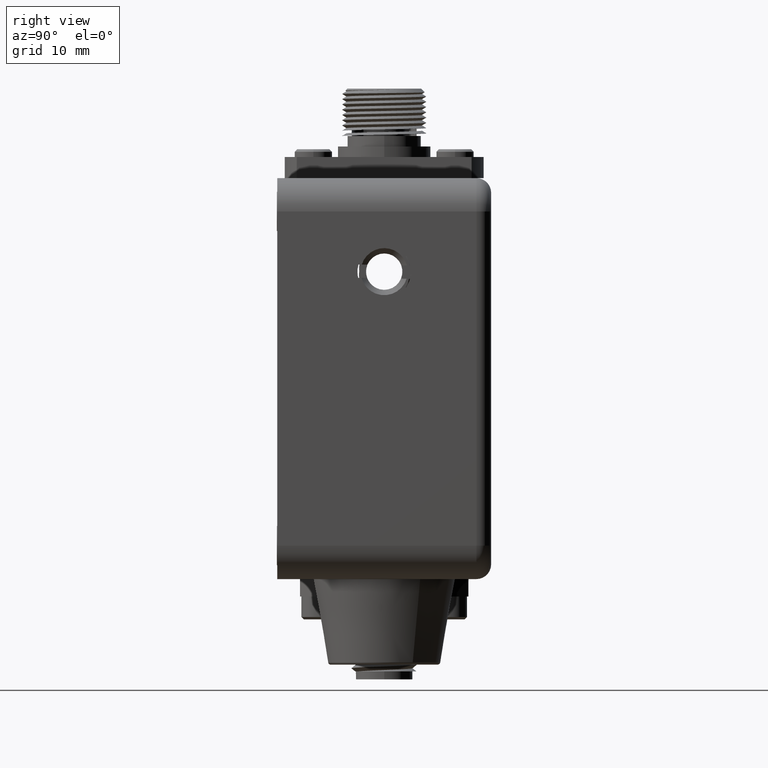
[diagram: clean part render]
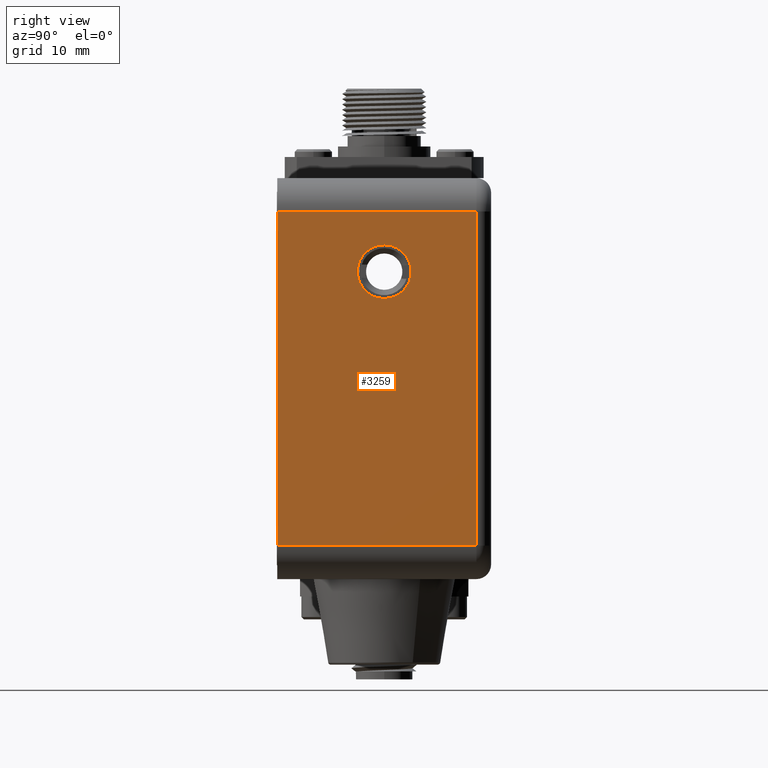
[diagram: same view with one face highlighted and labeled with its STEP entity id]
A machine part, right view. The second image highlights one B-rep face of the part: STEP entity #3259.
In plain terms, the highlighted planar face has unit normal (-1, 0, 0).
Its self-contained STEP definition (entity closure, byte-faithful):
#2993 = VERTEX_POINT ( 'NONE', #27521 ) ;
#3051 = EDGE_CURVE ( 'NONE', #3052, #2993, #27723, .T. ) ;
#3052 = VERTEX_POINT ( 'NONE', #27718 ) ;
#3251 = EDGE_CURVE ( 'NONE', #18142, #17988, #28486, .T. ) ;
#3259 = ADVANCED_FACE ( 'NONE', ( #28545, #28543 ), #28503, .F. ) ;
#3263 = EDGE_LOOP ( 'NONE', ( #3265, #3269 ) ) ;
#3265 = ORIENTED_EDGE ( 'NONE', *, *, #3251, .F. ) ;
#3269 = ORIENTED_EDGE ( 'NONE', *, *, #17993, .F. ) ;
#3271 = EDGE_LOOP ( 'NONE', ( #3316, #3319, #3324, #3333 ) ) ;
#3280 = VERTEX_POINT ( 'NONE', #28588 ) ;
#3284 = EDGE_CURVE ( 'NONE', #2993, #3280, #28586, .T. ) ;
#3316 = ORIENTED_EDGE ( 'NONE', *, *, #3284, .T. ) ;
#3319 = ORIENTED_EDGE ( 'NONE', *, *, #3320, .T. ) ;
#3320 = EDGE_CURVE ( 'NONE', #3280, #3322, #28704, .T. ) ;
#3322 = VERTEX_POINT ( 'NONE', #28699 ) ;
#3324 = ORIENTED_EDGE ( 'NONE', *, *, #3329, .T. ) ;
#3329 = EDGE_CURVE ( 'NONE', #3322, #3052, #28748, .T. ) ;
#3333 = ORIENTED_EDGE ( 'NONE', *, *, #3051, .T. ) ;
#17988 = VERTEX_POINT ( 'NONE', #48302 ) ;
#17993 = EDGE_CURVE ( 'NONE', #17988, #18142, #48298, .T. ) ;
#18142 = VERTEX_POINT ( 'NONE', #48763 ) ;
#27521 = CARTESIAN_POINT ( 'NONE',  ( 0.6999999999999999600, 0.0000000000000000000, -1.375000000000000200 ) ) ;
#27718 = CARTESIAN_POINT ( 'NONE',  ( 0.6999999999999999600, 0.0000000000000000000, -0.1250000000000004400 ) ) ;
#27720 = DIRECTION ( 'NONE',  ( 0.0000000000000000000, 0.0000000000000000000, -1.000000000000000000 ) ) ;
#27721 = VECTOR ( 'NONE', #27720, 39.37007874015748100 ) ;
#27722 = CARTESIAN_POINT ( 'NONE',  ( 0.6999999999999999600, 0.0000000000000000000, -1.500000000000000200 ) ) ;
#27723 = LINE ( 'NONE', #27722, #27721 ) ;
#28479 = DIRECTION ( 'NONE',  ( 0.0000000000000000000, 0.0000000000000000000, -1.000000000000000000 ) ) ;
#28481 = DIRECTION ( 'NONE',  ( 1.000000000000000000, 0.0000000000000000000, 2.926979993211710600E-016 ) ) ;
#28483 = CARTESIAN_POINT ( 'NONE',  ( 0.7000000000000000700, 0.4000000000000000200, -0.3499999999999998700 ) ) ;
#28484 = AXIS2_PLACEMENT_3D ( 'NONE', #28483, #28481, #28479 ) ;
#28486 = CIRCLE ( 'NONE', #28484, 0.1004999999999995900 ) ;
#28496 = DIRECTION ( 'NONE',  ( -1.000000000000000000, 0.0000000000000000000, 0.0000000000000000000 ) ) ;
#28498 = CARTESIAN_POINT ( 'NONE',  ( 0.6999999999999999600, 0.8000000000000000400, -1.500000000000000200 ) ) ;
#28500 = AXIS2_PLACEMENT_3D ( 'NONE', #28498, #28496, #28621 ) ;
#28503 = PLANE ( 'NONE',  #28500 ) ;
#28543 = FACE_OUTER_BOUND ( 'NONE', #3271, .T. ) ;
#28545 = FACE_BOUND ( 'NONE', #3263, .T. ) ;
#28582 = DIRECTION ( 'NONE',  ( 0.0000000000000000000, 1.000000000000000000, 0.0000000000000000000 ) ) ;
#28584 = VECTOR ( 'NONE', #28582, 39.37007874015748100 ) ;
#28585 = CARTESIAN_POINT ( 'NONE',  ( 0.6999999999999999600, 0.8000000000000000400, -1.375000000000000200 ) ) ;
#28586 = LINE ( 'NONE', #28585, #28584 ) ;
#28588 = CARTESIAN_POINT ( 'NONE',  ( 0.6999999999999999600, 0.7450000000000001100, -1.375000000000000200 ) ) ;
#28621 = DIRECTION ( 'NONE',  ( 0.0000000000000000000, 0.0000000000000000000, 1.000000000000000000 ) ) ;
#28699 = CARTESIAN_POINT ( 'NONE',  ( 0.6999999999999999600, 0.7450000000000001100, -0.1249999999999999000 ) ) ;
#28700 = DIRECTION ( 'NONE',  ( 0.0000000000000000000, 0.0000000000000000000, 1.000000000000000000 ) ) ;
#28701 = VECTOR ( 'NONE', #28700, 39.37007874015748100 ) ;
#28702 = CARTESIAN_POINT ( 'NONE',  ( 0.6999999999999999600, 0.7450000000000001100, -0.1250000000000004400 ) ) ;
#28704 = LINE ( 'NONE', #28702, #28701 ) ;
#28744 = DIRECTION ( 'NONE',  ( 0.0000000000000000000, -1.000000000000000000, 0.0000000000000000000 ) ) ;
#28745 = VECTOR ( 'NONE', #28744, 39.37007874015748100 ) ;
#28747 = CARTESIAN_POINT ( 'NONE',  ( 0.6999999999999999600, 0.8000000000000000400, -0.1249999999999999000 ) ) ;
#28748 = LINE ( 'NONE', #28747, #28745 ) ;
#48295 = DIRECTION ( 'NONE',  ( 1.000000000000000000, 0.0000000000000000000, 2.926979993211710600E-016 ) ) ;
#48296 = CARTESIAN_POINT ( 'NONE',  ( 0.7000000000000000700, 0.4000000000000000200, -0.3499999999999998700 ) ) ;
#48297 = AXIS2_PLACEMENT_3D ( 'NONE', #48296, #48295, #48339 ) ;
#48298 = CIRCLE ( 'NONE', #48297, 0.1004999999999995900 ) ;
#48302 = CARTESIAN_POINT ( 'NONE',  ( 0.7000000000000000700, 0.4000000000000000200, -0.2495000000000003000 ) ) ;
#48339 = DIRECTION ( 'NONE',  ( 0.0000000000000000000, 0.0000000000000000000, -1.000000000000000000 ) ) ;
#48763 = CARTESIAN_POINT ( 'NONE',  ( 0.7000000000000000700, 0.4000000000000000200, -0.4504999999999994600 ) ) ;